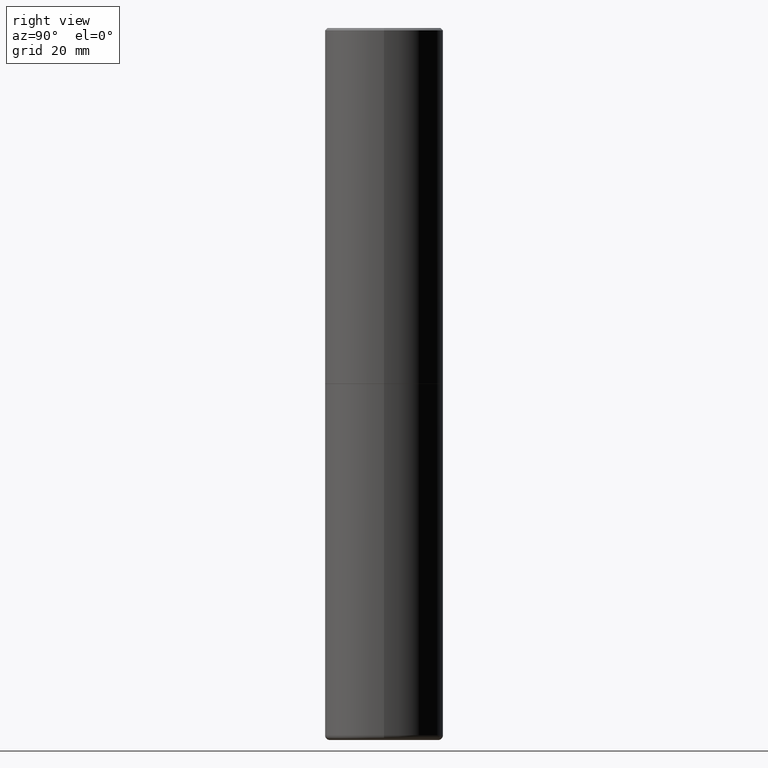
[diagram: clean part render]
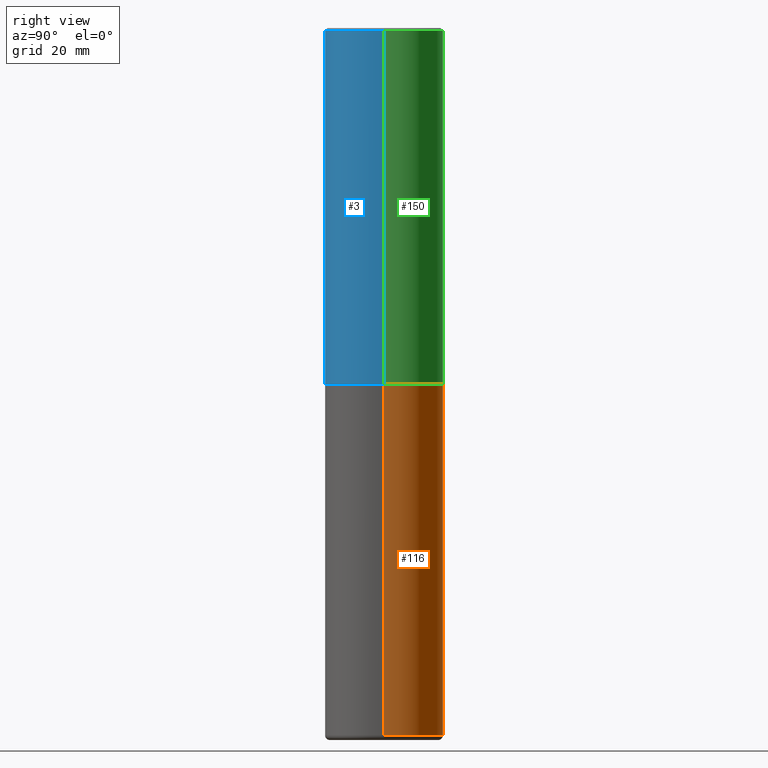
[diagram: same view with three faces highlighted in distinct colors, each labeled with its STEP entity id]
A machine part, right view with three faces highlighted in distinct colors.
Their STEP definitions:

[orange] entity #116 — the highlighted cylindrical surface (partial cylindrical patch) has radius 12.5006 mm, axis along (-0, 0, 1).
#6 = LINE ( 'NONE', #265, #293 ) ;
#40 = CIRCLE ( 'NONE', #364, 0.4921500000000000319 ) ;
#42 = DIRECTION ( 'NONE',  ( -2.445468806185136877E-29, 3.491481338843145188E-15, 1.000000000000000000 ) ) ;
#60 = EDGE_CURVE ( 'NONE', #91, #400, #6, .T. ) ;
#64 = ORIENTED_EDGE ( 'NONE', *, *, #274, .T. ) ;
#66 = VERTEX_POINT ( 'NONE', #235 ) ;
#88 = AXIS2_PLACEMENT_3D ( 'NONE', #101, #228, #362 ) ;
#91 = VERTEX_POINT ( 'NONE', #102 ) ;
#93 = ORIENTED_EDGE ( 'NONE', *, *, #333, .T. ) ;
#101 = CARTESIAN_POINT ( 'NONE',  ( 7.220735744022852519E-29, -1.030929694920215502E-14, -2.952700000000000102 ) ) ;
#102 = CARTESIAN_POINT ( 'NONE',  ( 0.4921500000000002539, -2.391804376361107326E-14, -5.866100000000000314 ) ) ;
#105 = CARTESIAN_POINT ( 'NONE',  ( 0.000000000000000000, 0.000000000000000000, 0.000000000000000000 ) ) ;
#116 = ADVANCED_FACE ( 'NONE', ( #233 ), #398, .T. ) ;
#130 = CARTESIAN_POINT ( 'NONE',  ( 0.4921499999999999764, -1.374596203102545079E-14, -2.952700000000000102 ) ) ;
#137 = CIRCLE ( 'NONE', #88, 0.4921499999999999764 ) ;
#146 = DIRECTION ( 'NONE',  ( -2.445468806185136597E-29, 3.491481338843145583E-15, 1.000000000000000000 ) ) ;
#147 = LINE ( 'NONE', #209, #299 ) ;
#209 = CARTESIAN_POINT ( 'NONE',  ( -0.4921499999999999764, 3.496936074043332897E-15, -2.420853904668951509E-29 ) ) ;
#228 = DIRECTION ( 'NONE',  ( -2.445468806185136597E-29, 3.491481338843145583E-15, 1.000000000000000000 ) ) ;
#231 = DIRECTION ( 'NONE',  ( 1.000000000000000000, -6.982962677686265922E-15, 4.876176775795935793E-29 ) ) ;
#233 = FACE_OUTER_BOUND ( 'NONE', #303, .T. ) ;
#235 = CARTESIAN_POINT ( 'NONE',  ( -0.4921500000000002539, -1.698444260774444222E-14, -5.866100000000000314 ) ) ;
#236 = CARTESIAN_POINT ( 'NONE',  ( 1.434536456396262923E-28, -2.048137868178777591E-14, -5.866100000000000314 ) ) ;
#265 = CARTESIAN_POINT ( 'NONE',  ( 0.4921499999999999764, -3.436665081823295777E-15, 2.399810400207969603E-29 ) ) ;
#266 = AXIS2_PLACEMENT_3D ( 'NONE', #105, #300, #231 ) ;
#271 = VERTEX_POINT ( 'NONE', #347 ) ;
#274 = EDGE_CURVE ( 'NONE', #66, #271, #147, .T. ) ;
#293 = VECTOR ( 'NONE', #42, 39.37007874015748143 ) ;
#299 = VECTOR ( 'NONE', #340, 39.37007874015748143 ) ;
#300 = DIRECTION ( 'NONE',  ( -2.445468806185136597E-29, 3.491481338843145583E-15, 1.000000000000000000 ) ) ;
#303 = EDGE_LOOP ( 'NONE', ( #93, #64, #416, #322 ) ) ;
#322 = ORIENTED_EDGE ( 'NONE', *, *, #60, .F. ) ;
#333 = EDGE_CURVE ( 'NONE', #91, #66, #40, .T. ) ;
#340 = DIRECTION ( 'NONE',  ( -2.445468806185136877E-29, 3.491481338843145188E-15, 1.000000000000000000 ) ) ;
#347 = CARTESIAN_POINT ( 'NONE',  ( -0.4921499999999999764, -1.189840174145163414E-14, -2.952700000000000102 ) ) ;
#360 = DIRECTION ( 'NONE',  ( 1.000000000000000000, -6.982962677686265133E-15, 0.000000000000000000 ) ) ;
#362 = DIRECTION ( 'NONE',  ( 1.000000000000000000, -6.982962677686265922E-15, 0.000000000000000000 ) ) ;
#364 = AXIS2_PLACEMENT_3D ( 'NONE', #236, #146, #360 ) ;
#377 = EDGE_CURVE ( 'NONE', #400, #271, #137, .T. ) ;
#398 = CYLINDRICAL_SURFACE ( 'NONE', #266, 0.4921499999999999764 ) ;
#400 = VERTEX_POINT ( 'NONE', #130 ) ;
#416 = ORIENTED_EDGE ( 'NONE', *, *, #377, .F. ) ;

[blue] entity #3 — the highlighted cylindrical surface (partial cylindrical patch) has radius 12.5006 mm, axis along (-0, 0, 1).
#3 = ADVANCED_FACE ( 'NONE', ( #174 ), #260, .T. ) ;
#10 = CARTESIAN_POINT ( 'NONE',  ( 0.4921500000000000319, -3.446223716380123138E-15, -0.02000000000000010797 ) ) ;
#11 = DIRECTION ( 'NONE',  ( 1.000000000000000000, -6.982962677686266711E-15, 4.876176775795935232E-29 ) ) ;
#27 = AXIS2_PLACEMENT_3D ( 'NONE', #269, #278, #115 ) ;
#30 = LINE ( 'NONE', #295, #234 ) ;
#34 = VECTOR ( 'NONE', #141, 39.37007874015748143 ) ;
#50 = EDGE_CURVE ( 'NONE', #253, #162, #304, .T. ) ;
#58 = EDGE_LOOP ( 'NONE', ( #279, #219, #250, #227 ) ) ;
#72 = EDGE_CURVE ( 'NONE', #253, #156, #344, .T. ) ;
#98 = VERTEX_POINT ( 'NONE', #10 ) ;
#115 = DIRECTION ( 'NONE',  ( 1.000000000000000000, -6.982962677686265922E-15, 0.000000000000000000 ) ) ;
#117 = AXIS2_PLACEMENT_3D ( 'NONE', #371, #135, #201 ) ;
#135 = DIRECTION ( 'NONE',  ( -2.445468806185136597E-29, 3.491481338843145583E-15, 1.000000000000000000 ) ) ;
#141 = DIRECTION ( 'NONE',  ( -2.445468806185136877E-29, 3.491481338843145188E-15, 1.000000000000000000 ) ) ;
#156 = VERTEX_POINT ( 'NONE', #403 ) ;
#162 = VERTEX_POINT ( 'NONE', #315 ) ;
#168 = DIRECTION ( 'NONE',  ( -2.445468806185136877E-29, 3.491481338843145188E-15, 1.000000000000000000 ) ) ;
#174 = FACE_OUTER_BOUND ( 'NONE', #58, .T. ) ;
#201 = DIRECTION ( 'NONE',  ( 1.000000000000000000, -6.982962677686265922E-15, 0.000000000000000000 ) ) ;
#211 = CIRCLE ( 'NONE', #27, 0.4921500000000000319 ) ;
#219 = ORIENTED_EDGE ( 'NONE', *, *, #72, .T. ) ;
#227 = ORIENTED_EDGE ( 'NONE', *, *, #251, .F. ) ;
#234 = VECTOR ( 'NONE', #168, 39.37007874015748143 ) ;
#250 = ORIENTED_EDGE ( 'NONE', *, *, #350, .T. ) ;
#251 = EDGE_CURVE ( 'NONE', #162, #98, #211, .T. ) ;
#253 = VERTEX_POINT ( 'NONE', #409 ) ;
#260 = CYLINDRICAL_SURFACE ( 'NONE', #316, 0.4921500000000001984 ) ;
#269 = CARTESIAN_POINT ( 'NONE',  ( 4.890937612370299433E-31, -6.982962677686328587E-17, -0.02000000000000010797 ) ) ;
#278 = DIRECTION ( 'NONE',  ( -2.445468806185136597E-29, 3.491481338843145583E-15, 1.000000000000000000 ) ) ;
#279 = ORIENTED_EDGE ( 'NONE', *, *, #50, .F. ) ;
#295 = CARTESIAN_POINT ( 'NONE',  ( 0.4921500000000001984, -3.436665081823297354E-15, 2.399810400207970443E-29 ) ) ;
#302 = CARTESIAN_POINT ( 'NONE',  ( -0.4921500000000001984, 3.496936074043334475E-15, -2.420853904668952630E-29 ) ) ;
#304 = LINE ( 'NONE', #302, #34 ) ;
#315 = CARTESIAN_POINT ( 'NONE',  ( -0.4921500000000000319, 3.366835455046432873E-15, -0.02000000000000010797 ) ) ;
#316 = AXIS2_PLACEMENT_3D ( 'NONE', #396, #370, #11 ) ;
#344 = CIRCLE ( 'NONE', #117, 0.4921500000000003094 ) ;
#350 = EDGE_CURVE ( 'NONE', #156, #98, #30, .T. ) ;
#370 = DIRECTION ( 'NONE',  ( -2.445468806185136597E-29, 3.491481338843145583E-15, 1.000000000000000000 ) ) ;
#371 = CARTESIAN_POINT ( 'NONE',  ( 7.218290275216666916E-29, -1.030580546786331359E-14, -2.951700000000000212 ) ) ;
#396 = CARTESIAN_POINT ( 'NONE',  ( 0.000000000000000000, 0.000000000000000000, 0.000000000000000000 ) ) ;
#403 = CARTESIAN_POINT ( 'NONE',  ( 0.4921500000000003094, -1.374247054968661252E-14, -2.951700000000000212 ) ) ;
#409 = CARTESIAN_POINT ( 'NONE',  ( -0.4921500000000003094, -1.690881473276752982E-15, -2.951700000000000212 ) ) ;

[green] entity #150 — the highlighted cylindrical surface (partial cylindrical patch) has radius 12.5006 mm, axis along (-0, 0, 1).
#10 = CARTESIAN_POINT ( 'NONE',  ( 0.4921500000000000319, -3.446223716380123138E-15, -0.02000000000000010797 ) ) ;
#12 = AXIS2_PLACEMENT_3D ( 'NONE', #204, #126, #217 ) ;
#30 = LINE ( 'NONE', #295, #234 ) ;
#33 = ORIENTED_EDGE ( 'NONE', *, *, #50, .T. ) ;
#34 = VECTOR ( 'NONE', #141, 39.37007874015748143 ) ;
#47 = FACE_OUTER_BOUND ( 'NONE', #124, .T. ) ;
#50 = EDGE_CURVE ( 'NONE', #253, #162, #304, .T. ) ;
#67 = AXIS2_PLACEMENT_3D ( 'NONE', #243, #239, #208 ) ;
#98 = VERTEX_POINT ( 'NONE', #10 ) ;
#112 = ORIENTED_EDGE ( 'NONE', *, *, #140, .T. ) ;
#124 = EDGE_LOOP ( 'NONE', ( #112, #33, #285, #259 ) ) ;
#126 = DIRECTION ( 'NONE',  ( -2.445468806185136597E-29, 3.491481338843145583E-15, 1.000000000000000000 ) ) ;
#136 = AXIS2_PLACEMENT_3D ( 'NONE', #263, #213, #246 ) ;
#140 = EDGE_CURVE ( 'NONE', #156, #253, #142, .T. ) ;
#141 = DIRECTION ( 'NONE',  ( -2.445468806185136877E-29, 3.491481338843145188E-15, 1.000000000000000000 ) ) ;
#142 = CIRCLE ( 'NONE', #136, 0.4921500000000003094 ) ;
#150 = ADVANCED_FACE ( 'NONE', ( #47 ), #314, .T. ) ;
#156 = VERTEX_POINT ( 'NONE', #403 ) ;
#162 = VERTEX_POINT ( 'NONE', #315 ) ;
#168 = DIRECTION ( 'NONE',  ( -2.445468806185136877E-29, 3.491481338843145188E-15, 1.000000000000000000 ) ) ;
#204 = CARTESIAN_POINT ( 'NONE',  ( 4.890937612370299433E-31, -6.982962677686328587E-17, -0.02000000000000010797 ) ) ;
#208 = DIRECTION ( 'NONE',  ( 1.000000000000000000, -6.982962677686266711E-15, 4.876176775795935232E-29 ) ) ;
#213 = DIRECTION ( 'NONE',  ( -2.445468806185136597E-29, 3.491481338843145583E-15, 1.000000000000000000 ) ) ;
#217 = DIRECTION ( 'NONE',  ( 1.000000000000000000, -6.982962677686265922E-15, 0.000000000000000000 ) ) ;
#234 = VECTOR ( 'NONE', #168, 39.37007874015748143 ) ;
#239 = DIRECTION ( 'NONE',  ( -2.445468806185136597E-29, 3.491481338843145583E-15, 1.000000000000000000 ) ) ;
#243 = CARTESIAN_POINT ( 'NONE',  ( 0.000000000000000000, 0.000000000000000000, 0.000000000000000000 ) ) ;
#246 = DIRECTION ( 'NONE',  ( 1.000000000000000000, -6.982962677686265922E-15, 0.000000000000000000 ) ) ;
#248 = CIRCLE ( 'NONE', #12, 0.4921500000000000319 ) ;
#253 = VERTEX_POINT ( 'NONE', #409 ) ;
#259 = ORIENTED_EDGE ( 'NONE', *, *, #350, .F. ) ;
#263 = CARTESIAN_POINT ( 'NONE',  ( 7.218290275216666916E-29, -1.030580546786331359E-14, -2.951700000000000212 ) ) ;
#285 = ORIENTED_EDGE ( 'NONE', *, *, #367, .F. ) ;
#295 = CARTESIAN_POINT ( 'NONE',  ( 0.4921500000000001984, -3.436665081823297354E-15, 2.399810400207970443E-29 ) ) ;
#302 = CARTESIAN_POINT ( 'NONE',  ( -0.4921500000000001984, 3.496936074043334475E-15, -2.420853904668952630E-29 ) ) ;
#304 = LINE ( 'NONE', #302, #34 ) ;
#314 = CYLINDRICAL_SURFACE ( 'NONE', #67, 0.4921500000000001984 ) ;
#315 = CARTESIAN_POINT ( 'NONE',  ( -0.4921500000000000319, 3.366835455046432873E-15, -0.02000000000000010797 ) ) ;
#350 = EDGE_CURVE ( 'NONE', #156, #98, #30, .T. ) ;
#367 = EDGE_CURVE ( 'NONE', #98, #162, #248, .T. ) ;
#403 = CARTESIAN_POINT ( 'NONE',  ( 0.4921500000000003094, -1.374247054968661252E-14, -2.951700000000000212 ) ) ;
#409 = CARTESIAN_POINT ( 'NONE',  ( -0.4921500000000003094, -1.690881473276752982E-15, -2.951700000000000212 ) ) ;